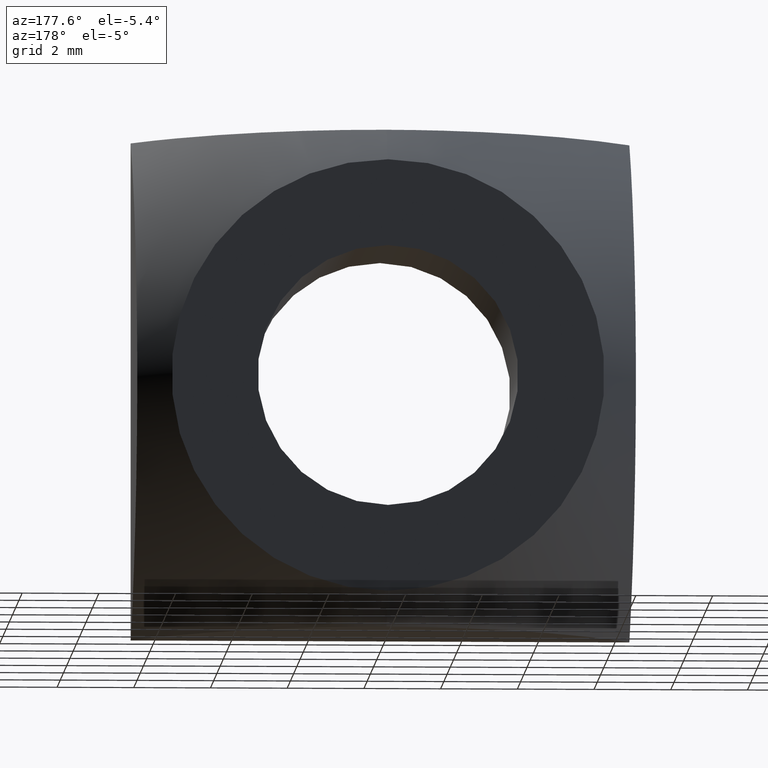
[diagram: clean part render]
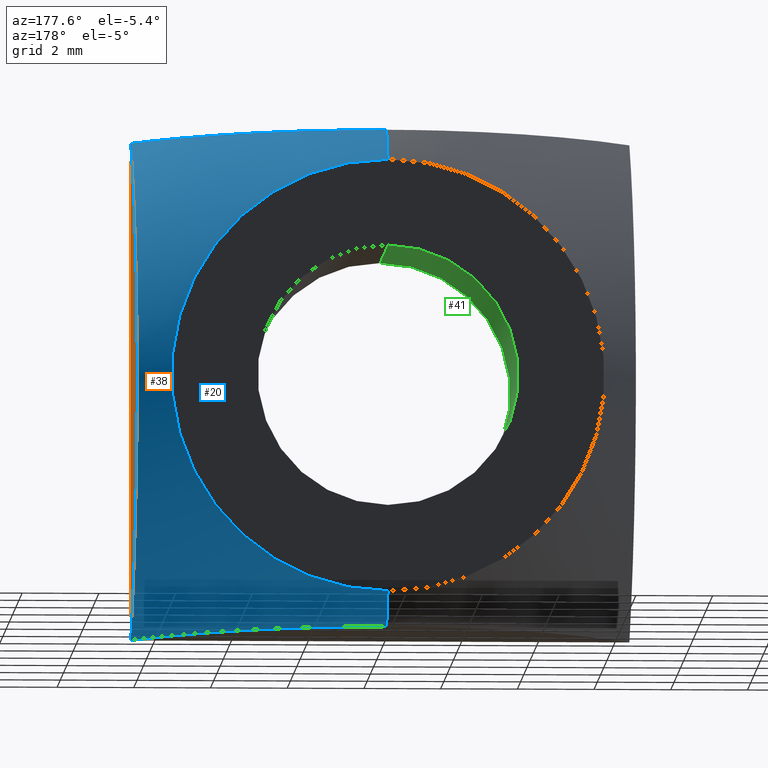
[diagram: same view with three faces highlighted in distinct colors, each labeled with its STEP entity id]
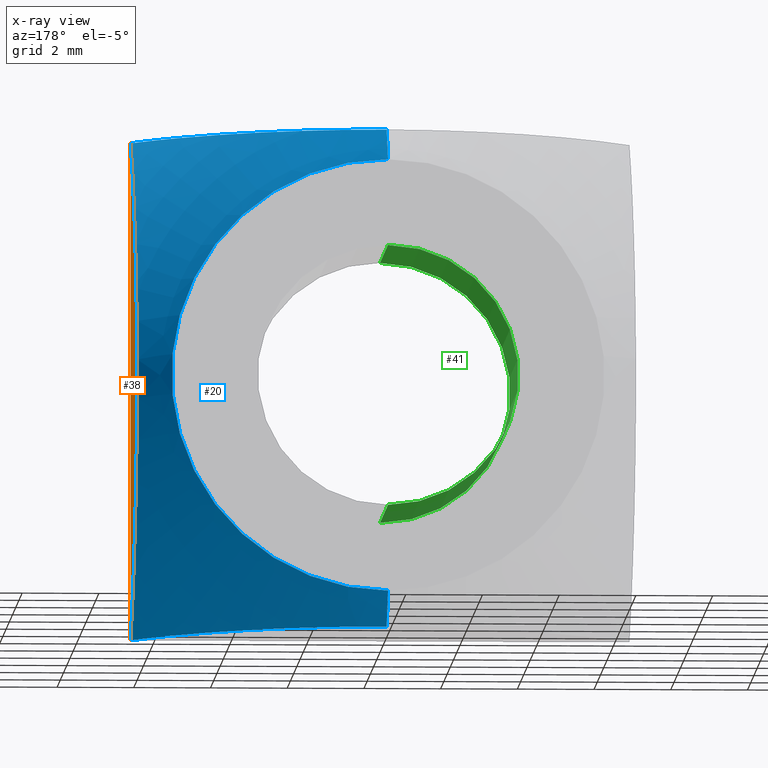
[diagram: x-ray of the same camera — body ghosted, the three highlighted faces saturated]
A machine part, auxiliary view with three faces highlighted in distinct colors.
The next image is the same camera in x-ray (body ghosted, the three faces saturated) — at least one of them is partly hidden behind the body in this view.
Their STEP definitions:

[orange] entity #38 — the highlighted planar face has unit normal (-1, 0, 0).
#7 = EDGE_CURVE ( 'NONE', #131, #430, #218, .T. ) ;
#18 = EDGE_CURVE ( 'NONE', #265, #216, #59, .T. ) ;
#37 = EDGE_CURVE ( 'NONE', #216, #430, #350, .T. ) ;
#38 = ADVANCED_FACE ( 'NONE', ( #163 ), #318, .F. ) ;
#40 = EDGE_CURVE ( 'NONE', #265, #131, #323, .T. ) ;
#59 = B_SPLINE_CURVE_WITH_KNOTS ( 'NONE', 3,
 ( #427, #127, #300, #312, #180, #268, #253, #182, #155, #286, #258, #272, #313, #301, #122, #278, #121, #384, #429, #446, #193, #288 ),
 .UNSPECIFIED., .F., .F.,
 ( 4, 2, 2, 2, 2, 2, 2, 2, 2, 2, 4 ),
 ( 0.05469827054856389600, 0.05668859883386803000, 0.05867892711917216400, 0.05967409126182423400, 0.06066925540447630500, 0.06265958368978043200, 0.06464991197508457300, 0.06664024026038870000, 0.06763540440304077700, 0.06863056854569284100, 0.07062089683099698200 ),
 .UNSPECIFIED. ) ;
#64 = VECTOR ( 'NONE', #159, 1000.000000000000000 ) ;
#73 = VECTOR ( 'NONE', #367, 1000.000000000000000 ) ;
#77 = VECTOR ( 'NONE', #379, 1000.000000000000000 ) ;
#108 = AXIS2_PLACEMENT_3D ( 'NONE', #351, #380, #361 ) ;
#121 = CARTESIAN_POINT ( 'NONE',  ( 6.500000000000000900, 2.493975134977584500, -4.279363623376158700 ) ) ;
#122 = CARTESIAN_POINT ( 'NONE',  ( 6.500000000000001800, 3.255705233841443400, -3.184796144167166600 ) ) ;
#127 = CARTESIAN_POINT ( 'NONE',  ( 6.500000000000001800, 0.6029189208887844000, 6.130610147754108400 ) ) ;
#131 = VERTEX_POINT ( 'NONE', #187 ) ;
#145 = ORIENTED_EDGE ( 'NONE', *, *, #40, .T. ) ;
#155 = CARTESIAN_POINT ( 'NONE',  ( 6.500000000000003600, 3.672803873449343100, 2.269417947576013900 ) ) ;
#159 = DIRECTION ( 'NONE',  ( 0.0000000000000000000, 0.0000000000000000000, -1.000000000000000000 ) ) ;
#163 = FACE_OUTER_BOUND ( 'NONE', #417, .T. ) ;
#180 = CARTESIAN_POINT ( 'NONE',  ( 6.500000000000001800, 2.513996523866347800, 4.284981449289306400 ) ) ;
#182 = CARTESIAN_POINT ( 'NONE',  ( 6.500000000000001800, 3.540326829205433500, 2.580638880078240500 ) ) ;
#187 = CARTESIAN_POINT ( 'NONE',  ( 6.500000000000000000, 0.0000000000000000000, 6.500000000000000900 ) ) ;
#193 = CARTESIAN_POINT ( 'NONE',  ( 6.499999999999999100, 0.6064152342343858100, -6.128270591372422700 ) ) ;
#207 = ORIENTED_EDGE ( 'NONE', *, *, #37, .F. ) ;
#215 = CARTESIAN_POINT ( 'NONE',  ( 6.500000000000000000, 0.05089004898344110000, 6.500000000000096800 ) ) ;
#216 = VERTEX_POINT ( 'NONE', #383 ) ;
#218 = LINE ( 'NONE', #369, #64 ) ;
#253 = CARTESIAN_POINT ( 'NONE',  ( 6.500000000000000000, 3.239278010035516500, 3.174652484528239800 ) ) ;
#258 = CARTESIAN_POINT ( 'NONE',  ( 6.500000000000000900, 4.109602374153204200, 0.6751484999688126500 ) ) ;
#262 = ORIENTED_EDGE ( 'NONE', *, *, #18, .F. ) ;
#265 = VERTEX_POINT ( 'NONE', #215 ) ;
#268 = CARTESIAN_POINT ( 'NONE',  ( 6.500000000000000000, 3.070129253417008800, 3.459911975005473200 ) ) ;
#272 = CARTESIAN_POINT ( 'NONE',  ( 6.499999999999999100, 4.109867876356198700, -0.6728596580751724500 ) ) ;
#278 = CARTESIAN_POINT ( 'NONE',  ( 6.500000000000000000, 2.698058606819216700, -4.011808767700928000 ) ) ;
#286 = CARTESIAN_POINT ( 'NONE',  ( 6.499999999999999100, 3.993284070446342100, 1.324997778549834400 ) ) ;
#288 = CARTESIAN_POINT ( 'NONE',  ( 6.500000000000000000, 0.05089004898344625500, -6.499999999999999100 ) ) ;
#300 = CARTESIAN_POINT ( 'NONE',  ( 6.500000000000000900, 1.119725732539727000, 5.718510072696611600 ) ) ;
#301 = CARTESIAN_POINT ( 'NONE',  ( 6.500000000000000000, 3.560839629399143100, -2.597151962111099400 ) ) ;
#312 = CARTESIAN_POINT ( 'NONE',  ( 6.500000000000000900, 2.074011848386387900, 4.798117493915518700 ) ) ;
#313 = CARTESIAN_POINT ( 'NONE',  ( 6.500000000000000900, 3.993916635667172700, -1.325323139714399000 ) ) ;
#318 = PLANE ( 'NONE',  #108 ) ;
#323 = LINE ( 'NONE', #376, #73 ) ;
#336 = CARTESIAN_POINT ( 'NONE',  ( 6.500000000000000000, 0.0000000000000000000, -6.499999999999999100 ) ) ;
#350 = LINE ( 'NONE', #372, #77 ) ;
#351 = CARTESIAN_POINT ( 'NONE',  ( 6.500000000000000000, 5.000000000000000000, 6.500000000000000900 ) ) ;
#361 = DIRECTION ( 'NONE',  ( 0.0000000000000000000, 0.0000000000000000000, 1.000000000000000000 ) ) ;
#367 = DIRECTION ( 'NONE',  ( -0.0000000000000000000, -1.000000000000000000, -0.0000000000000000000 ) ) ;
#369 = CARTESIAN_POINT ( 'NONE',  ( 6.500000000000000000, 0.0000000000000000000, 6.500000000000000900 ) ) ;
#372 = CARTESIAN_POINT ( 'NONE',  ( 6.500000000000000000, 5.000000000000000000, -6.499999999999999100 ) ) ;
#376 = CARTESIAN_POINT ( 'NONE',  ( 6.500000000000000000, 5.000000000000000000, 6.500000000000000900 ) ) ;
#379 = DIRECTION ( 'NONE',  ( -0.0000000000000000000, -1.000000000000000000, -0.0000000000000000000 ) ) ;
#380 = DIRECTION ( 'NONE',  ( -1.000000000000000000, 0.0000000000000000000, 0.0000000000000000000 ) ) ;
#383 = CARTESIAN_POINT ( 'NONE',  ( 6.500000000000000000, 0.05089004898344625500, -6.499999999999999100 ) ) ;
#384 = CARTESIAN_POINT ( 'NONE',  ( 6.500000000000000000, 2.063493455043995200, -4.786396139126090100 ) ) ;
#411 = ORIENTED_EDGE ( 'NONE', *, *, #7, .T. ) ;
#417 = EDGE_LOOP ( 'NONE', ( #262, #145, #411, #207 ) ) ;
#427 = CARTESIAN_POINT ( 'NONE',  ( 6.500000000000000000, 0.05089004898344110000, 6.500000000000096800 ) ) ;
#429 = CARTESIAN_POINT ( 'NONE',  ( 6.500000000000000000, 1.836440676869278300, -5.027131309837737500 ) ) ;
#430 = VERTEX_POINT ( 'NONE', #336 ) ;
#446 = CARTESIAN_POINT ( 'NONE',  ( 6.500000000000000000, 1.123578473997169500, -5.715031706449933000 ) ) ;

[blue] entity #20 — the highlighted toroidal blend (fillet) surface has major radius 6.1743 mm and minor (blend) radius 17 mm.
#8 = EDGE_CURVE ( 'NONE', #238, #248, #72, .T. ) ;
#10 = EDGE_CURVE ( 'NONE', #416, #305, #100, .T. ) ;
#11 = EDGE_CURVE ( 'NONE', #416, #238, #85, .T. ) ;
#18 = EDGE_CURVE ( 'NONE', #265, #216, #59, .T. ) ;
#20 = ADVANCED_FACE ( 'NONE', ( #332 ), #80, .T. ) ;
#23 = EDGE_CURVE ( 'NONE', #248, #265, #58, .T. ) ;
#25 = EDGE_CURVE ( 'NONE', #216, #305, #54, .T. ) ;
#54 = B_SPLINE_CURVE_WITH_KNOTS ( 'NONE', 3,
 ( #423, #191, #271, #137, #364, #150, #395, #249, #245, #263, #235, #403 ),
 .UNSPECIFIED., .F., .F.,
 ( 4, 2, 2, 2, 2, 4 ),
 ( 0.05469827054856396500, 0.05668888045020877000, 0.05867949035185357500, 0.05967479530267597700, 0.06067010025349838000, 0.06266071015514318400 ),
 .UNSPECIFIED. ) ;
#58 = B_SPLINE_CURVE_WITH_KNOTS ( 'NONE', 3,
 ( #306, #167, #143, #396, #287, #210, #447, #445, #259, #327, #132, #444 ),
 .UNSPECIFIED., .F., .F.,
 ( 4, 2, 2, 2, 2, 4 ),
 ( 7.740424289688171000E-019, 0.001990046668963452900, 0.003980093337926904900, 0.004975116672408631300, 0.005970140006890356000, 0.007960186675853809700 ),
 .UNSPECIFIED. ) ;
#59 = B_SPLINE_CURVE_WITH_KNOTS ( 'NONE', 3,
 ( #427, #127, #300, #312, #180, #268, #253, #182, #155, #286, #258, #272, #313, #301, #122, #278, #121, #384, #429, #446, #193, #288 ),
 .UNSPECIFIED., .F., .F.,
 ( 4, 2, 2, 2, 2, 2, 2, 2, 2, 2, 4 ),
 ( 0.05469827054856389600, 0.05668859883386803000, 0.05867892711917216400, 0.05967409126182423400, 0.06066925540447630500, 0.06265958368978043200, 0.06464991197508457300, 0.06664024026038870000, 0.06763540440304077700, 0.06863056854569284100, 0.07062089683099698200 ),
 .UNSPECIFIED. ) ;
#62 = AXIS2_PLACEMENT_3D ( 'NONE', #283, #284, #343 ) ;
#67 = AXIS2_PLACEMENT_3D ( 'NONE', #198, #178, #276 ) ;
#72 = CIRCLE ( 'NONE', #106, 17.00000000000000000 ) ;
#80 = TOROIDAL_SURFACE ( 'NONE', #62, -6.174269187523332600, 17.00000000000000000 ) ;
#85 = CIRCLE ( 'NONE', #103, 5.644004798131256000 ) ;
#100 = CIRCLE ( 'NONE', #67, 17.00000000000000000 ) ;
#103 = AXIS2_PLACEMENT_3D ( 'NONE', #440, #431, #156 ) ;
#106 = AXIS2_PLACEMENT_3D ( 'NONE', #243, #404, #234 ) ;
#120 = ORIENTED_EDGE ( 'NONE', *, *, #8, .T. ) ;
#121 = CARTESIAN_POINT ( 'NONE',  ( 6.500000000000000900, 2.493975134977584500, -4.279363623376158700 ) ) ;
#122 = CARTESIAN_POINT ( 'NONE',  ( 6.500000000000001800, 3.255705233841443400, -3.184796144167166600 ) ) ;
#127 = CARTESIAN_POINT ( 'NONE',  ( 6.500000000000001800, 0.6029189208887844000, 6.130610147754108400 ) ) ;
#132 = CARTESIAN_POINT ( 'NONE',  ( 6.128323188261370000, 0.6063366316385198100, 6.499999999999999100 ) ) ;
#137 = CARTESIAN_POINT ( 'NONE',  ( 4.797843221465077700, 2.074270503709216000, -6.500000000000000000 ) ) ;
#143 = CARTESIAN_POINT ( 'NONE',  ( 1.326264826254138100, 3.993687183243997300, 6.500000000000001800 ) ) ;
#148 = CARTESIAN_POINT ( 'NONE',  ( 0.0000000000000000000, 4.109735237956652300, -6.499999999999999100 ) ) ;
#150 = CARTESIAN_POINT ( 'NONE',  ( 3.459394421651929900, 3.070451726834670000, -6.499999999999999100 ) ) ;
#155 = CARTESIAN_POINT ( 'NONE',  ( 6.500000000000003600, 3.672803873449343100, 2.269417947576013900 ) ) ;
#156 = DIRECTION ( 'NONE',  ( 0.0000000000000000000, 0.0000000000000000000, -1.000000000000000000 ) ) ;
#167 = CARTESIAN_POINT ( 'NONE',  ( 0.6727004638865451400, 4.109735237956653200, 6.500000000000001800 ) ) ;
#172 = ORIENTED_EDGE ( 'NONE', *, *, #23, .T. ) ;
#177 = CARTESIAN_POINT ( 'NONE',  ( 9.094269545930501500E-016, 4.999999999999999100, 5.644004798131256000 ) ) ;
#178 = DIRECTION ( 'NONE',  ( -1.000000000000000000, 0.0000000000000000000, 0.0000000000000000000 ) ) ;
#180 = CARTESIAN_POINT ( 'NONE',  ( 6.500000000000001800, 2.513996523866347800, 4.284981449289306400 ) ) ;
#182 = CARTESIAN_POINT ( 'NONE',  ( 6.500000000000001800, 3.540326829205433500, 2.580638880078240500 ) ) ;
#191 = CARTESIAN_POINT ( 'NONE',  ( 6.130557881894588900, 0.6029970287828965200, -6.500000000000000900 ) ) ;
#193 = CARTESIAN_POINT ( 'NONE',  ( 6.499999999999999100, 0.6064152342343858100, -6.128270591372422700 ) ) ;
#194 = EDGE_LOOP ( 'NONE', ( #270, #120, #172, #203, #310, #273 ) ) ;
#198 = CARTESIAN_POINT ( 'NONE',  ( 0.0000000000000000000, -7.220000000000002400, 6.174269187523332600 ) ) ;
#203 = ORIENTED_EDGE ( 'NONE', *, *, #18, .T. ) ;
#210 = CARTESIAN_POINT ( 'NONE',  ( 4.012227267387110900, 2.697749916528785700, 6.500000000000001800 ) ) ;
#215 = CARTESIAN_POINT ( 'NONE',  ( 6.500000000000000000, 0.05089004898344110000, 6.500000000000096800 ) ) ;
#216 = VERTEX_POINT ( 'NONE', #383 ) ;
#224 = CARTESIAN_POINT ( 'NONE',  ( 0.0000000000000000000, 4.999999999999999100, -5.644004798131256000 ) ) ;
#234 = DIRECTION ( 'NONE',  ( -1.224646799147353200E-016, 0.0000000000000000000, -1.000000000000000000 ) ) ;
#235 = CARTESIAN_POINT ( 'NONE',  ( 0.6728908548416576700, 4.109735237956652300, -6.500000000000000000 ) ) ;
#238 = VERTEX_POINT ( 'NONE', #177 ) ;
#243 = CARTESIAN_POINT ( 'NONE',  ( -7.561298997574578500E-016, -7.220000000000002400, -6.174269187523332600 ) ) ;
#245 = CARTESIAN_POINT ( 'NONE',  ( 2.268669397716664100, 3.673102568464428500, -6.500000000000000000 ) ) ;
#248 = VERTEX_POINT ( 'NONE', #414 ) ;
#249 = CARTESIAN_POINT ( 'NONE',  ( 2.579949745945124800, 3.540641047558085400, -6.500000000000000900 ) ) ;
#253 = CARTESIAN_POINT ( 'NONE',  ( 6.500000000000000000, 3.239278010035516500, 3.174652484528239800 ) ) ;
#258 = CARTESIAN_POINT ( 'NONE',  ( 6.500000000000000900, 4.109602374153204200, 0.6751484999688126500 ) ) ;
#259 = CARTESIAN_POINT ( 'NONE',  ( 5.027364923004412800, 1.836211336588453600, 6.500000000000000900 ) ) ;
#263 = CARTESIAN_POINT ( 'NONE',  ( 1.324089535981858300, 3.993502740051849000, -6.500000000000001800 ) ) ;
#265 = VERTEX_POINT ( 'NONE', #215 ) ;
#268 = CARTESIAN_POINT ( 'NONE',  ( 6.500000000000000000, 3.070129253417008800, 3.459911975005473200 ) ) ;
#270 = ORIENTED_EDGE ( 'NONE', *, *, #11, .T. ) ;
#271 = CARTESIAN_POINT ( 'NONE',  ( 5.718393653599501500, 1.119872145102332100, -6.500000000000000000 ) ) ;
#272 = CARTESIAN_POINT ( 'NONE',  ( 6.499999999999999100, 4.109867876356198700, -0.6728596580751724500 ) ) ;
#273 = ORIENTED_EDGE ( 'NONE', *, *, #10, .F. ) ;
#276 = DIRECTION ( 'NONE',  ( 0.0000000000000000000, 0.0000000000000000000, 1.000000000000000000 ) ) ;
#278 = CARTESIAN_POINT ( 'NONE',  ( 6.500000000000000000, 2.698058606819216700, -4.011808767700928000 ) ) ;
#283 = CARTESIAN_POINT ( 'NONE',  ( 0.0000000000000000000, -7.220000000000002400, 0.0000000000000000000 ) ) ;
#284 = DIRECTION ( 'NONE',  ( -0.0000000000000000000, -1.000000000000000000, -0.0000000000000000000 ) ) ;
#286 = CARTESIAN_POINT ( 'NONE',  ( 6.499999999999999100, 3.993284070446342100, 1.324997778549834400 ) ) ;
#287 = CARTESIAN_POINT ( 'NONE',  ( 3.185363310006315500, 3.255375731933069200, 6.500000000000002700 ) ) ;
#288 = CARTESIAN_POINT ( 'NONE',  ( 6.500000000000000000, 0.05089004898344625500, -6.499999999999999100 ) ) ;
#300 = CARTESIAN_POINT ( 'NONE',  ( 6.500000000000000900, 1.119725732539727000, 5.718510072696611600 ) ) ;
#301 = CARTESIAN_POINT ( 'NONE',  ( 6.500000000000000000, 3.560839629399143100, -2.597151962111099400 ) ) ;
#305 = VERTEX_POINT ( 'NONE', #148 ) ;
#306 = CARTESIAN_POINT ( 'NONE',  ( 7.960204194457799400E-016, 4.109735237956652300, 6.500000000000000900 ) ) ;
#310 = ORIENTED_EDGE ( 'NONE', *, *, #25, .T. ) ;
#312 = CARTESIAN_POINT ( 'NONE',  ( 6.500000000000000900, 2.074011848386387900, 4.798117493915518700 ) ) ;
#313 = CARTESIAN_POINT ( 'NONE',  ( 6.500000000000000900, 3.993916635667172700, -1.325323139714399000 ) ) ;
#327 = CARTESIAN_POINT ( 'NONE',  ( 5.715148467929195100, 1.123431959365039700, 6.499999999999999100 ) ) ;
#332 = FACE_OUTER_BOUND ( 'NONE', #194, .T. ) ;
#343 = DIRECTION ( 'NONE',  ( 0.0000000000000000000, 0.0000000000000000000, -1.000000000000000000 ) ) ;
#364 = CARTESIAN_POINT ( 'NONE',  ( 4.284615633495711500, 2.514295792640064900, -6.499999999999999100 ) ) ;
#383 = CARTESIAN_POINT ( 'NONE',  ( 6.500000000000000000, 0.05089004898344625500, -6.499999999999999100 ) ) ;
#384 = CARTESIAN_POINT ( 'NONE',  ( 6.500000000000000000, 2.063493455043995200, -4.786396139126090100 ) ) ;
#395 = CARTESIAN_POINT ( 'NONE',  ( 3.174080856937301100, 3.239602677233732700, -6.499999999999999100 ) ) ;
#396 = CARTESIAN_POINT ( 'NONE',  ( 2.597829809248621400, 3.560517489800200300, 6.500000000000001800 ) ) ;
#403 = CARTESIAN_POINT ( 'NONE',  ( 0.0000000000000000000, 4.109735237956652300, -6.499999999999999100 ) ) ;
#404 = DIRECTION ( 'NONE',  ( 1.000000000000000000, 0.0000000000000000000, -1.224646799147353200E-016 ) ) ;
#414 = CARTESIAN_POINT ( 'NONE',  ( 7.960204194457799400E-016, 4.109735237956652300, 6.500000000000000900 ) ) ;
#416 = VERTEX_POINT ( 'NONE', #224 ) ;
#423 = CARTESIAN_POINT ( 'NONE',  ( 6.500000000000000000, 0.05089004898344625500, -6.499999999999999100 ) ) ;
#427 = CARTESIAN_POINT ( 'NONE',  ( 6.500000000000000000, 0.05089004898344110000, 6.500000000000096800 ) ) ;
#429 = CARTESIAN_POINT ( 'NONE',  ( 6.500000000000000000, 1.836440676869278300, -5.027131309837737500 ) ) ;
#431 = DIRECTION ( 'NONE',  ( 0.0000000000000000000, -1.000000000000000000, 0.0000000000000000000 ) ) ;
#440 = CARTESIAN_POINT ( 'NONE',  ( 0.0000000000000000000, 4.999999999999999100, 0.0000000000000000000 ) ) ;
#444 = CARTESIAN_POINT ( 'NONE',  ( 6.500000000000000000, 0.05089004898344110000, 6.500000000000096800 ) ) ;
#445 = CARTESIAN_POINT ( 'NONE',  ( 4.786672189913906200, 2.063239728859763000, 6.500000000000001800 ) ) ;
#446 = CARTESIAN_POINT ( 'NONE',  ( 6.500000000000000000, 1.123578473997169500, -5.715031706449933000 ) ) ;
#447 = CARTESIAN_POINT ( 'NONE',  ( 4.279733229958324600, 2.493680659320124600, 6.500000000000000000 ) ) ;

[green] entity #41 — the highlighted cylindrical surface (partial cylindrical patch) has radius 3.4 mm, axis along (-0, 1, -0).
#4 = EDGE_CURVE ( 'NONE', #365, #386, #443, .T. ) ;
#22 = EDGE_CURVE ( 'NONE', #130, #365, #94, .T. ) ;
#32 = EDGE_CURVE ( 'NONE', #386, #149, #96, .T. ) ;
#33 = EDGE_CURVE ( 'NONE', #130, #149, #299, .T. ) ;
#41 = ADVANCED_FACE ( 'NONE', ( #319 ), #334, .F. ) ;
#68 = VECTOR ( 'NONE', #233, 1000.000000000000000 ) ;
#74 = AXIS2_PLACEMENT_3D ( 'NONE', #128, #410, #136 ) ;
#78 = AXIS2_PLACEMENT_3D ( 'NONE', #219, #274, #394 ) ;
#90 = VECTOR ( 'NONE', #373, 1000.000000000000000 ) ;
#94 = CIRCLE ( 'NONE', #74, 3.399999999999999500 ) ;
#96 = CIRCLE ( 'NONE', #78, 3.399999999999999500 ) ;
#102 = AXIS2_PLACEMENT_3D ( 'NONE', #353, #244, #406 ) ;
#128 = CARTESIAN_POINT ( 'NONE',  ( 0.0000000000000000000, 0.0000000000000000000, 0.0000000000000000000 ) ) ;
#130 = VERTEX_POINT ( 'NONE', #304 ) ;
#136 = DIRECTION ( 'NONE',  ( 0.0000000000000000000, 0.0000000000000000000, -1.000000000000000000 ) ) ;
#140 = ORIENTED_EDGE ( 'NONE', *, *, #32, .T. ) ;
#149 = VERTEX_POINT ( 'NONE', #231 ) ;
#219 = CARTESIAN_POINT ( 'NONE',  ( 0.0000000000000000000, 5.000000000000000000, 0.0000000000000000000 ) ) ;
#231 = CARTESIAN_POINT ( 'NONE',  ( 0.0000000000000000000, 5.000000000000000000, 3.399999999999999500 ) ) ;
#233 = DIRECTION ( 'NONE',  ( -0.0000000000000000000, 1.000000000000000000, -0.0000000000000000000 ) ) ;
#244 = DIRECTION ( 'NONE',  ( -0.0000000000000000000, 1.000000000000000000, -0.0000000000000000000 ) ) ;
#261 = ORIENTED_EDGE ( 'NONE', *, *, #33, .F. ) ;
#274 = DIRECTION ( 'NONE',  ( -0.0000000000000000000, 1.000000000000000000, -0.0000000000000000000 ) ) ;
#290 = CARTESIAN_POINT ( 'NONE',  ( 4.163799117101000100E-016, 0.0000000000000000000, -3.399999999999999500 ) ) ;
#298 = ORIENTED_EDGE ( 'NONE', *, *, #22, .T. ) ;
#299 = LINE ( 'NONE', #382, #68 ) ;
#304 = CARTESIAN_POINT ( 'NONE',  ( 0.0000000000000000000, 0.0000000000000000000, 3.399999999999999500 ) ) ;
#319 = FACE_OUTER_BOUND ( 'NONE', #400, .T. ) ;
#334 = CYLINDRICAL_SURFACE ( 'NONE', #102, 3.399999999999999500 ) ;
#349 = CARTESIAN_POINT ( 'NONE',  ( 4.163799117101000100E-016, 5.000000000000000000, -3.399999999999999500 ) ) ;
#353 = CARTESIAN_POINT ( 'NONE',  ( 0.0000000000000000000, 5.000000000000000000, 0.0000000000000000000 ) ) ;
#365 = VERTEX_POINT ( 'NONE', #290 ) ;
#373 = DIRECTION ( 'NONE',  ( -0.0000000000000000000, 1.000000000000000000, -0.0000000000000000000 ) ) ;
#382 = CARTESIAN_POINT ( 'NONE',  ( 0.0000000000000000000, 5.000000000000000000, 3.399999999999999500 ) ) ;
#386 = VERTEX_POINT ( 'NONE', #407 ) ;
#394 = DIRECTION ( 'NONE',  ( 0.0000000000000000000, 0.0000000000000000000, 1.000000000000000000 ) ) ;
#400 = EDGE_LOOP ( 'NONE', ( #298, #455, #140, #261 ) ) ;
#406 = DIRECTION ( 'NONE',  ( 0.0000000000000000000, 0.0000000000000000000, 1.000000000000000000 ) ) ;
#407 = CARTESIAN_POINT ( 'NONE',  ( 4.163799117101000100E-016, 5.000000000000000000, -3.399999999999999500 ) ) ;
#410 = DIRECTION ( 'NONE',  ( 0.0000000000000000000, -1.000000000000000000, 0.0000000000000000000 ) ) ;
#443 = LINE ( 'NONE', #349, #90 ) ;
#455 = ORIENTED_EDGE ( 'NONE', *, *, #4, .T. ) ;